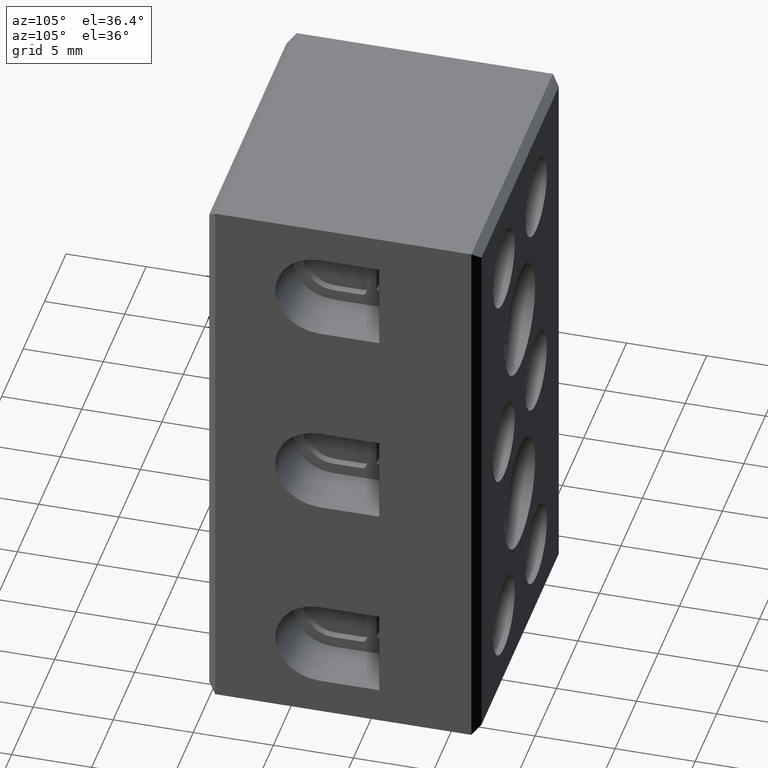
[diagram: clean part render]
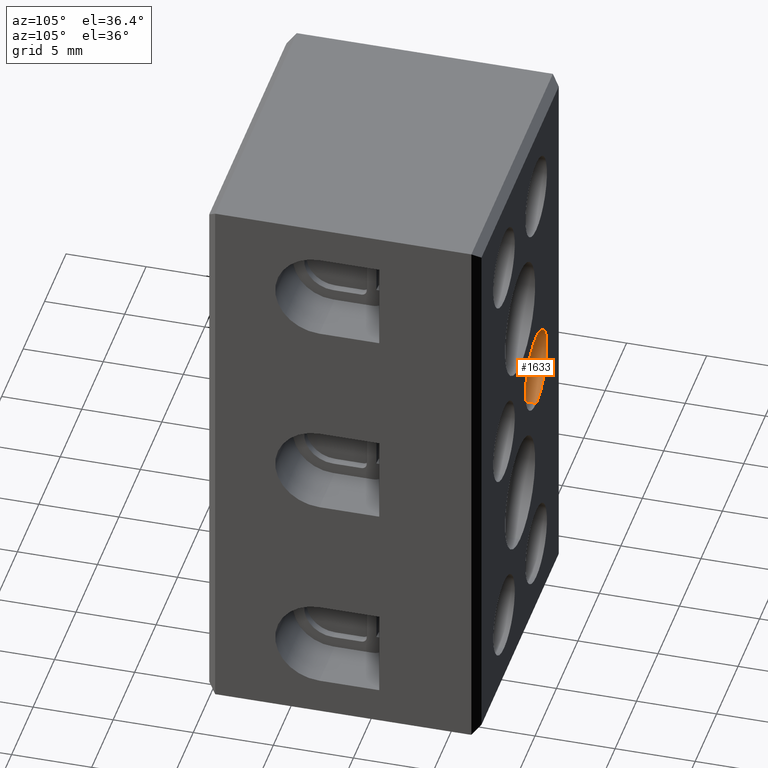
[diagram: same view with one face highlighted and labeled with its STEP entity id]
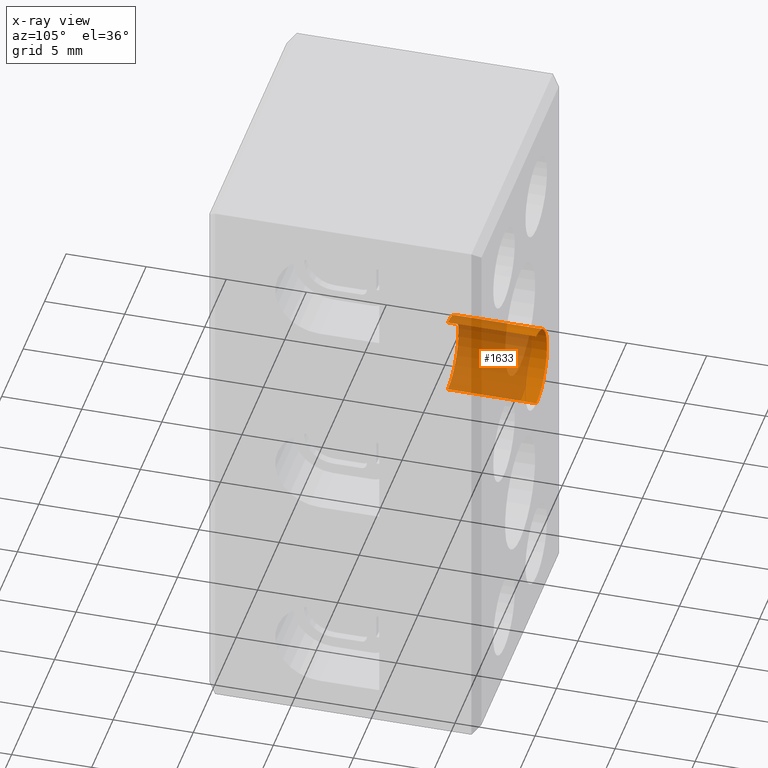
[diagram: x-ray of the same camera — body ghosted, the highlighted face saturated]
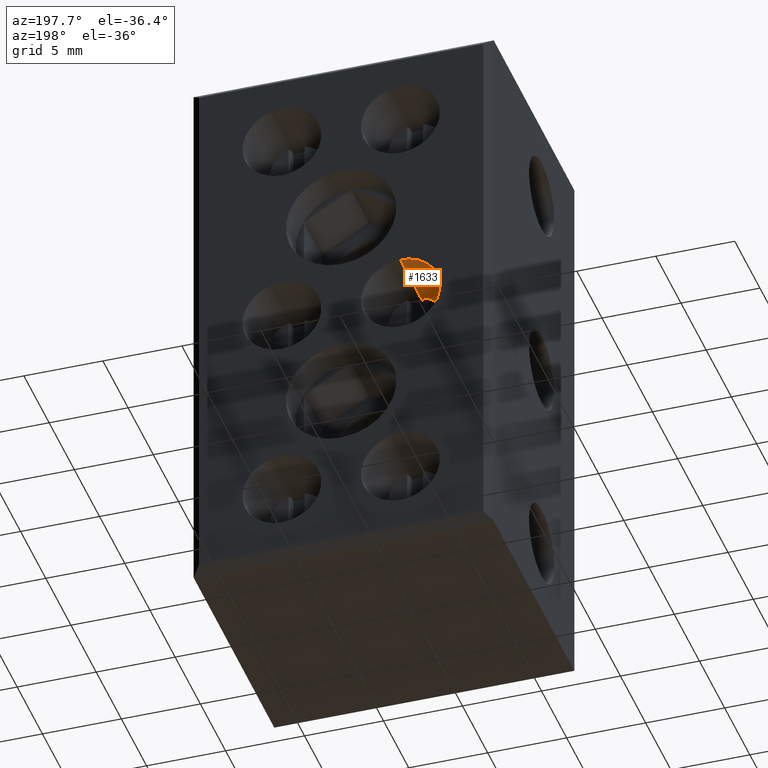
[diagram: same view with one face highlighted and labeled with its STEP entity id]
A machine part, auxiliary view. The second image highlights one B-rep face of the part: STEP entity #1633.
The next image is the same camera in x-ray: the body ghosted, the highlighted face saturated — about 79% of this face is hidden behind the body in this view.
A second angle (auxiliary view) of the same face is appended — the face is thin or edge-on in the first view.
In plain terms, the highlighted cylindrical surface (partial cylindrical patch) has radius 2.5 mm, axis along (0, 1, 0).
Its self-contained STEP definition (entity closure, byte-faithful):
#971 = EDGE_CURVE ( 'NONE', #6494, #6513, #4722, .T. ) ;
#977 = EDGE_CURVE ( 'NONE', #6441, #6482, #4774, .T. ) ;
#978 = EDGE_CURVE ( 'NONE', #6482, #6513, #5933, .T. ) ;
#984 = EDGE_CURVE ( 'NONE', #6494, #6441, #5907, .T. ) ;
#1633 = ADVANCED_FACE ( 'NONE', ( #3368 ), #3371, .F. ) ;
#2509 = EDGE_LOOP ( 'NONE', ( #6976, #6969, #6967, #6957 ) ) ;
#3360 = DIRECTION ( 'NONE',  ( 0.0000000000000000000, 0.0000000000000000000, 1.000000000000000000 ) ) ;
#3363 = CARTESIAN_POINT ( 'NONE',  ( 6483.507784387872600, 10.50000000000000200, -18.00342649165530800 ) ) ;
#3368 = FACE_OUTER_BOUND ( 'NONE', #2509, .T. ) ;
#3371 = CYLINDRICAL_SURFACE ( 'NONE', #4221, 2.500000000000161600 ) ;
#3378 = DIRECTION ( 'NONE',  ( 0.0000000000000000000, 1.000000000000000000, 0.0000000000000000000 ) ) ;
#4221 = AXIS2_PLACEMENT_3D ( 'NONE', #3363, #3378, #3360 ) ;
#4705 = CARTESIAN_POINT ( 'NONE',  ( 6483.507784387872600, 10.50000000000000200, -20.50342649165546800 ) ) ;
#4722 = LINE ( 'NONE', #4705, #5957 ) ;
#4731 = DIRECTION ( 'NONE',  ( 0.0000000000000000000, 1.000000000000000000, 0.0000000000000000000 ) ) ;
#4747 = CARTESIAN_POINT ( 'NONE',  ( 6483.507784387872600, 10.50000000000000200, -15.50342649165514400 ) ) ;
#4749 = DIRECTION ( 'NONE',  ( 0.0000000000000000000, 1.000000000000000000, 0.0000000000000000000 ) ) ;
#4750 = DIRECTION ( 'NONE',  ( 0.0000000000000000000, 1.000000000000000000, 0.0000000000000000000 ) ) ;
#4752 = CARTESIAN_POINT ( 'NONE',  ( 6483.507784387872600, 11.47889287136609600, -18.00342649165530800 ) ) ;
#4764 = CARTESIAN_POINT ( 'NONE',  ( 6483.507784387872600, 17.00000000000000000, -18.00342649165530800 ) ) ;
#4769 = DIRECTION ( 'NONE',  ( -0.0000000000000000000, -1.000000000000000000, -0.0000000000000000000 ) ) ;
#4772 = DIRECTION ( 'NONE',  ( 0.0000000000000000000, 0.0000000000000000000, 1.000000000000000000 ) ) ;
#4774 = LINE ( 'NONE', #4747, #5950 ) ;
#4775 = DIRECTION ( 'NONE',  ( 0.0000000000000000000, 0.0000000000000000000, 1.000000000000000000 ) ) ;
#5907 = CIRCLE ( 'NONE', #5918, 2.500000000000161600 ) ;
#5918 = AXIS2_PLACEMENT_3D ( 'NONE', #4752, #4749, #4772 ) ;
#5920 = AXIS2_PLACEMENT_3D ( 'NONE', #4764, #4769, #4775 ) ;
#5933 = CIRCLE ( 'NONE', #5920, 2.500000000000161600 ) ;
#5950 = VECTOR ( 'NONE', #4750, 1000.000000000000000 ) ;
#5957 = VECTOR ( 'NONE', #4731, 1000.000000000000000 ) ;
#6441 = VERTEX_POINT ( 'NONE', #8381 ) ;
#6482 = VERTEX_POINT ( 'NONE', #7412 ) ;
#6494 = VERTEX_POINT ( 'NONE', #7423 ) ;
#6513 = VERTEX_POINT ( 'NONE', #7596 ) ;
#6957 = ORIENTED_EDGE ( 'NONE', *, *, #977, .F. ) ;
#6967 = ORIENTED_EDGE ( 'NONE', *, *, #978, .F. ) ;
#6969 = ORIENTED_EDGE ( 'NONE', *, *, #971, .T. ) ;
#6976 = ORIENTED_EDGE ( 'NONE', *, *, #984, .F. ) ;
#7412 = CARTESIAN_POINT ( 'NONE',  ( 6483.507784387872600, 17.00000000000000000, -15.50342649165514400 ) ) ;
#7423 = CARTESIAN_POINT ( 'NONE',  ( 6483.507784387872600, 11.47889287136609600, -20.50342649165546800 ) ) ;
#7596 = CARTESIAN_POINT ( 'NONE',  ( 6483.507784387872600, 17.00000000000000000, -20.50342649165546800 ) ) ;
#8381 = CARTESIAN_POINT ( 'NONE',  ( 6483.507784387872600, 11.47889287136609600, -15.50342649165514400 ) ) ;